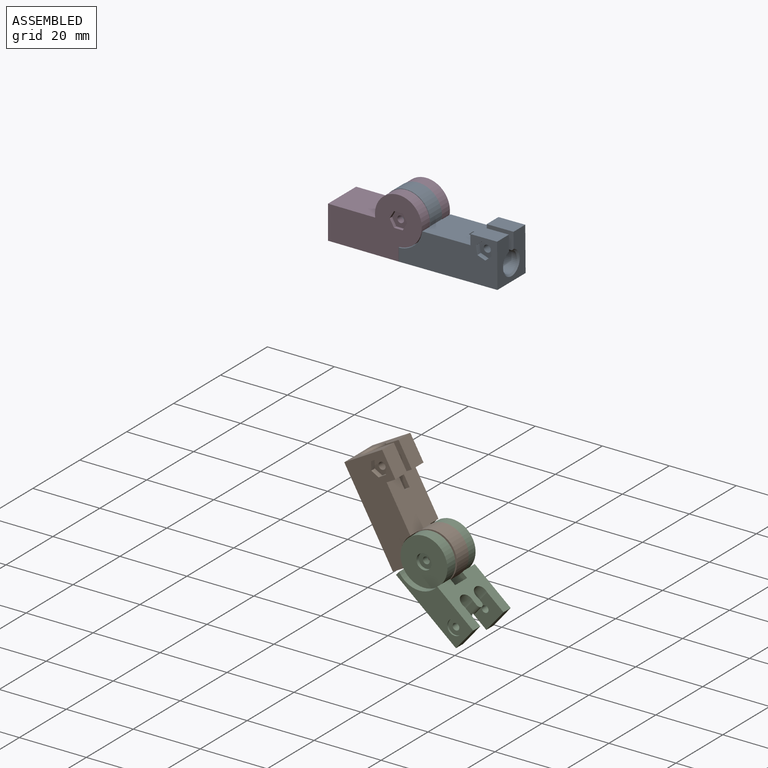
[diagram: assembled view]
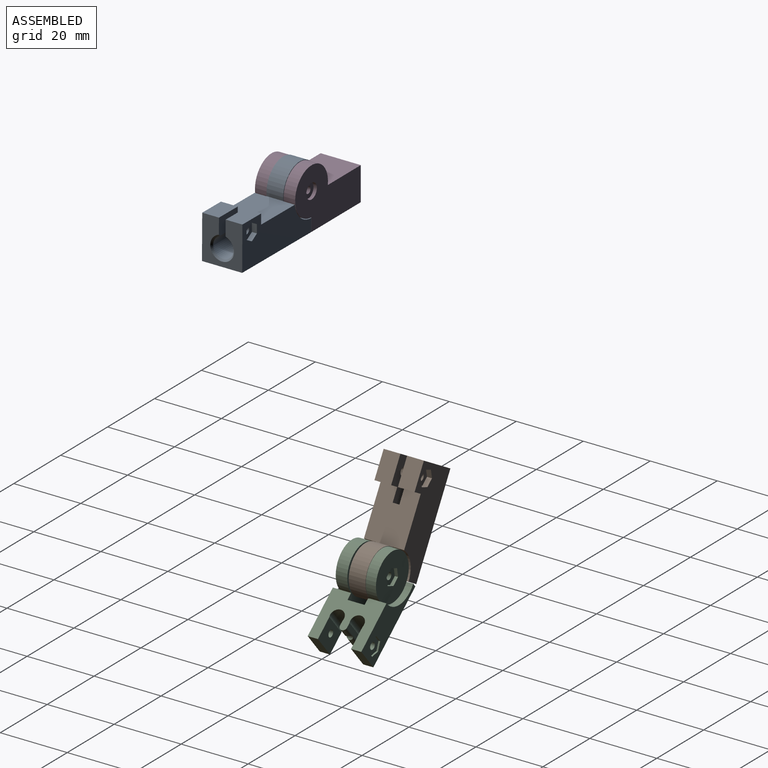
[diagram: assembled view, second angle]
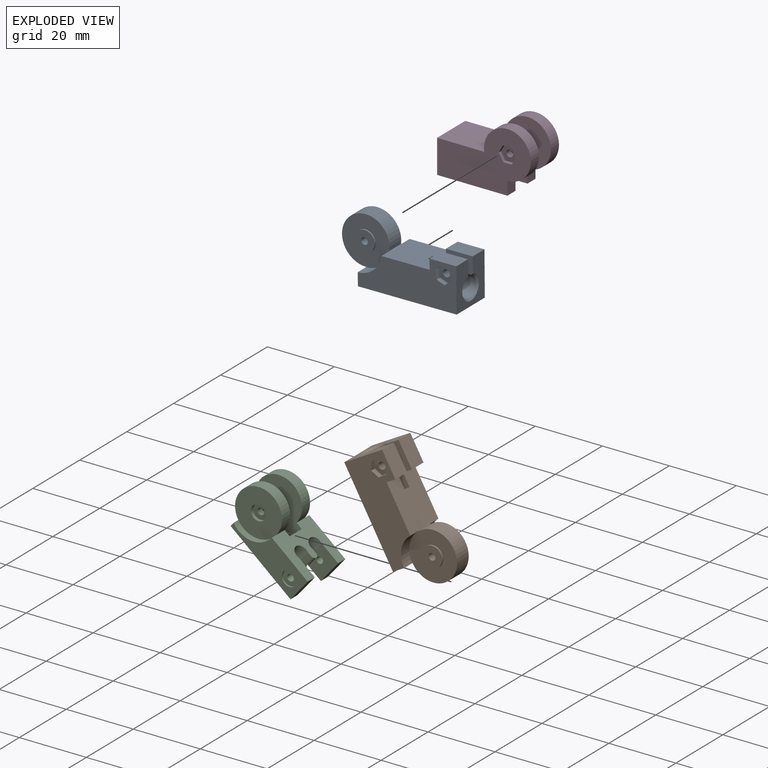
[diagram: exploded view]
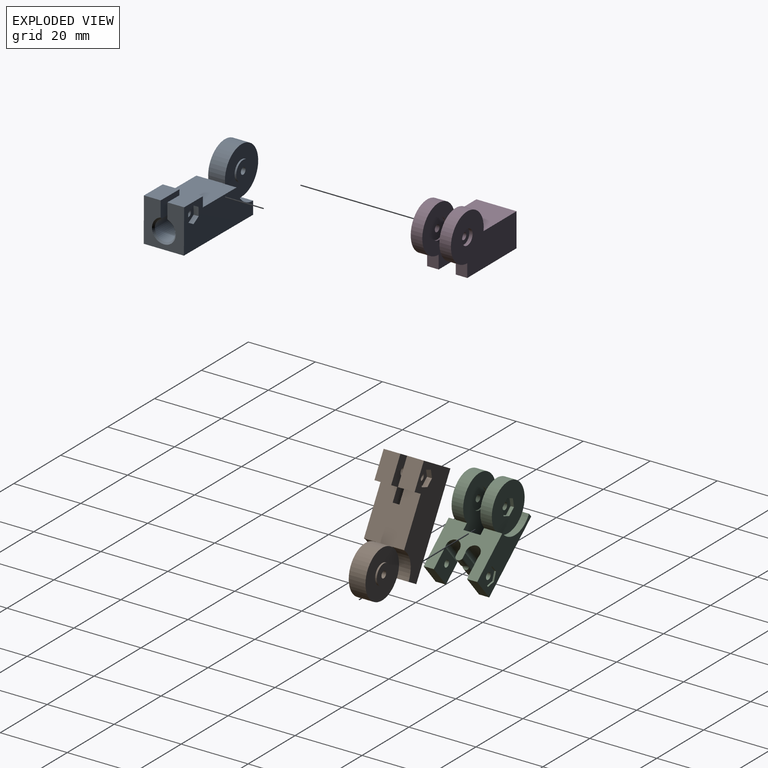
[diagram: exploded view, second angle]
ASSEMBLY  parts=4 mates=2
PART A: 44 faces, bbox 36.6x12x18.1 mm
  f0: plane 8x5mm, normal (0,0,1), area 40mm2, adj f4,f8,f15,f41
  f1: cylinder r=1.05mm len=3.5mm, axis (0,-1,0), area 23.1mm2, adj f39,f40
  f2: plane 14.47x12mm, normal (0,0,1), area 164.9mm2, adj f3,f7,f8,f9,f14,f15,f17,f18
  f3: plane 5x3mm, normal (1,0,0), area 15mm2, adj f2,f7,f16,f40
  f4: plane 13x12mm, normal (-1,0,0), area 107.4mm2, adj f0,f7,f8,f10,f16,f40,f41,f43
  f5: cylinder r=3.05mm len=19.5mm, axis (-1,0,0), area 350.3mm2, adj f25,f40,f41,f42,f43
  f6: cylinder r=1.05mm len=3.5mm, axis (0,-1,0), area 23.1mm2, adj f32,f41
  f7: plane 29.5x13mm, normal (0,1,0), area 268.7mm2, adj f2,f3,f4,f9,f10,f11,f12,f13
  f8: plane 29.5x13mm, normal (0,-1,0), area 268.7mm2, adj f0,f2,f4,f10,f11,f12,f13,f14
  f9: cylinder r=7.2mm len=7.13mm, axis (0,1,0), area 36.1mm2, adj f2,f7,f13,f18
  f10: plane 29.5x12mm, normal (0,0,-1), area 354mm2, adj f4,f7,f8,f11
  f11: plane 12x3mm, normal (1,0,0), area 36mm2, adj f7,f8,f10,f12
  f12: plane 12x0.7mm, normal (1,0,-0.01), area 8.4mm2, adj f7,f8,f11,f13
  f13: plane 12x0.2mm, normal (1,0,0), area 1.7mm2, adj f7,f8,f9,f12,f14,f17,f18,f19
  f14: cylinder r=7.2mm len=7.13mm, axis (0,1,0), area 36.1mm2, adj f2,f8,f13,f17
  f15: plane 5x3mm, normal (1,0,0), area 15mm2, adj f0,f2,f8,f41
  f16: plane 8x5mm, normal (0,0,1), area 40mm2, adj f3,f4,f7,f40
  f17: plane 14.3x14.23mm, normal (0,-1,0), area 131.1mm2, adj f2,f13,f14,f19,f23
  f18: plane 14.3x14.23mm, normal (0,1,0), area 131.1mm2, adj f2,f9,f13,f19,f22
  f19: cylinder r=7.1mm len=14.2mm, axis (0,1,0), area 172.3mm2, adj f2,f13,f17,f18
  f20: cylinder r=1mm len=6mm, axis (0,1,0), area 37.7mm2, adj f21,f24
  f21: plane 6x6mm, normal (0,1,0), area 25.1mm2, adj f20,f22
  f22: cylinder r=3mm len=6mm, axis (0,1,0), area 9.4mm2, adj f18,f21
  f23: cylinder r=3mm len=6mm, axis (0,1,0), area 9.4mm2, adj f17,f24
  f24: plane 6x6mm, normal (0,-1,0), area 25.1mm2, adj f20,f23
  f25: plane 6.1x6.1mm, normal (-1,0,0), area 29.2mm2, adj f5
  f26: plane 2.23x1.5mm, normal (-0.48,0,-0.88), area 3.8mm2, adj f8,f27,f31,f32
  f27: plane 2.17x1.5mm, normal (0.52,0,-0.85), area 3.8mm2, adj f8,f26,f28,f32
  f28: plane 2.54x1.5mm, normal (1,0,0.03), area 3.8mm2, adj f8,f27,f29,f32
  f29: plane 2.23x1.5mm, normal (0.48,0,0.88), area 3.8mm2, adj f8,f28,f30,f32
  f30: plane 2.17x1.5mm, normal (-0.52,0,0.85), area 3.8mm2, adj f8,f29,f31,f32
  f31: plane 2.54x1.5mm, normal (-1,0,-0.03), area 3.8mm2, adj f8,f26,f30,f32
  f32: plane 5.08x4.46mm, normal (0,-1,0), area 13.3mm2, adj f6,f26,f27,f28,f29,f30,f31
  f33: plane 2.38x1.5mm, normal (0.35,0,-0.94), area 3.8mm2, adj f7,f34,f38,f39
  f34: plane 1.95x1.62mm, normal (-0.64,0,-0.77), area 3.8mm2, adj f7,f33,f35,f39
  f35: plane 2.5x1.5mm, normal (-0.99,0,0.17), area 3.8mm2, adj f7,f34,f36,f39
  f36: plane 2.38x1.5mm, normal (-0.35,0,0.94), area 3.8mm2, adj f7,f35,f37,f39
  f37: plane 1.95x1.62mm, normal (0.64,0,0.77), area 3.8mm2, adj f7,f36,f38,f39
  f38: plane 2.5x1.5mm, normal (0.99,0,-0.17), area 3.8mm2, adj f7,f33,f37,f39
  f39: plane 5.01x4.77mm, normal (0,1,0), area 13.3mm2, adj f1,f33,f34,f35,f36,f37,f38
  f40: plane 12.01x5.13mm, normal (0,-1,0), area 45.8mm2, adj f1,f2,f3,f4,f5,f16,f42,f43
  f41: plane 12.01x5.13mm, normal (0,1,0), area 45.8mm2, adj f0,f2,f4,f5,f6,f15,f42,f43
  f42: plane 2.12x2mm, normal (-1,0,0), area 4mm2, adj f2,f5,f40,f41
  f43: cone r=3.05mm half-angle=45deg, axis (-1,0,0), area 13.2mm2, adj f4,f5,f40,f41
PART B: same geometry as A
PART C: 54 faces, bbox 28x16x15 mm
  f0: cylinder r=1mm len=2.55mm, axis (0,-1,0), area 16mm2, adj f37,f51
  f1: plane 23.36x8mm, normal (0,-1,0), area 114.7mm2, adj f4,f5,f9,f10,f17,f43,f44,f45
  f2: cylinder r=1mm len=2.55mm, axis (0,-1,0), area 16mm2, adj f38,f49
  f3: plane 3.02x0.1mm, normal (-1,0,0), area 0.3mm2, adj f9,f42,f52,f53
  f4: plane 8x3.05mm, normal (-1,0,0), area 24.4mm2, adj f1,f5,f9,f38
  f5: plane 16x14mm, normal (0,0,1), area 137mm2, adj f1,f4,f11,f12,f14,f15,f17,f18
  f6: cylinder r=1mm len=2mm, axis (0,-1,0), area 12.6mm2, adj f21,f34
  f7: plane 14x14mm, normal (0,-1,0), area 136.4mm2, adj f11,f17,f26,f27,f28,f29,f30,f31
  f8: cylinder r=1mm len=2mm, axis (0,-1,0), area 12.6mm2, adj f22,f32
  f9: plane 23.36x16mm, normal (0,0,-1), area 239mm2, adj f1,f3,f4,f10,f15,f16,f18,f23
  f10: plane 5.45x1.41mm, normal (1,0,0), area 7.7mm2, adj f1,f9,f11,f17,f24
  f11: cylinder r=7mm len=14mm, axis (0,1,0), area 105.5mm2, adj f5,f7,f10,f24
  f12: cylinder r=7mm len=14mm, axis (0,1,0), area 105.5mm2, adj f5,f16,f19,f25
  f13: cylinder r=3.05mm len=6.1mm, axis (0,-1,0), area 8.6mm2, adj f22,f24
  f14: cylinder r=7mm len=9.36mm, axis (0,1,0), area 26.8mm2, adj f5,f16,f18,f19
  f15: plane 8x3.05mm, normal (-1,0,0), area 24.4mm2, adj f5,f9,f18,f37
  f16: plane 5.45x1.41mm, normal (1,0,0), area 7.7mm2, adj f9,f12,f14,f18,f25
  f17: cylinder r=7mm len=9.36mm, axis (0,1,0), area 26.8mm2, adj f1,f5,f7,f10
  f18: plane 23.36x8mm, normal (0,1,0), area 116.3mm2, adj f5,f9,f14,f15,f16,f50
  f19: plane 14x14mm, normal (0,1,0), area 138mm2, adj f12,f14,f33
  f20: cylinder r=3.05mm len=6.1mm, axis (0,-1,0), area 8.6mm2, adj f21,f25
  f21: plane 6.1x6.1mm, normal (0,-1,0), area 26.1mm2, adj f6,f20
  f22: plane 6.1x6.1mm, normal (0,1,0), area 26.1mm2, adj f8,f13
  f23: plane 8x5.1mm, normal (1,0,0), area 40.8mm2, adj f5,f9,f24,f25
  f24: plane 16x15mm, normal (0,1,0), area 160.9mm2, adj f5,f9,f10,f11,f13,f23
  f25: plane 16x15mm, normal (0,-1,0), area 160.9mm2, adj f5,f9,f12,f16,f20,f23
  f26: plane 2.6x1mm, normal (0,0,-1), area 2.6mm2, adj f7,f27,f31,f32
  f27: plane 2.25x1.3mm, normal (0.87,0,-0.5), area 2.6mm2, adj f7,f26,f28,f32
  f28: plane 2.25x1.3mm, normal (0.87,0,0.5), area 2.6mm2, adj f7,f27,f29,f32
  f29: plane 2.6x1mm, normal (0,0,1), area 2.6mm2, adj f7,f28,f30,f32
  f30: plane 2.25x1.3mm, normal (-0.87,0,0.5), area 2.6mm2, adj f7,f29,f31,f32
  f31: plane 2.25x1.3mm, normal (-0.87,0,-0.5), area 2.6mm2, adj f7,f26,f30,f32
  f32: plane 5.2x4.5mm, normal (0,-1,0), area 14.4mm2, adj f8,f26,f27,f28,f29,f30,f31
  f33: cylinder r=2.25mm len=4.5mm, axis (0,1,0), area 14.1mm2, adj f19,f34
  f34: plane 4.5x4.5mm, normal (0,1,0), area 12.8mm2, adj f6,f33
  f35: plane 8x1.37mm, normal (0,1,0), area 10.9mm2, adj f5,f9,f36,f53
  f36: cylinder r=2.05mm len=8mm, axis (0,0,1), area 61.8mm2, adj f5,f9,f35,f37
  f37: plane 8x6.37mm, normal (0,-1,0), area 47.8mm2, adj f0,f5,f9,f15,f36
  f38: plane 8x6.37mm, normal (0,1,0), area 47.8mm2, adj f2,f4,f5,f9,f39
  f39: cylinder r=2.05mm len=8mm, axis (0,0,1), area 61.8mm2, adj f5,f9,f38,f40
  f40: plane 8x1.37mm, normal (0,-1,0), area 10.9mm2, adj f5,f9,f39,f52
  f41: plane 3.02x0.1mm, normal (-1,0,0), area 0.3mm2, adj f5,f42,f52,f53
  f42: cylinder r=1mm len=2.06mm, axis (0,-1,0), area 4.7mm2, adj f3,f41,f52,f53
  f43: plane 2.6x0.5mm, normal (-1,0,0), area 1.3mm2, adj f1,f44,f48,f49
  f44: plane 2.25x1.3mm, normal (-0.5,0,-0.87), area 1.3mm2, adj f1,f43,f45,f49
  f45: plane 2.25x1.3mm, normal (0.5,0,-0.87), area 1.3mm2, adj f1,f44,f46,f49
  f46: plane 2.6x0.5mm, normal (1,0,0), area 1.3mm2, adj f1,f45,f47,f49
  f47: plane 2.25x1.3mm, normal (0.5,0,0.87), area 1.3mm2, adj f1,f46,f48,f49
  f48: plane 2.25x1.3mm, normal (-0.5,0,0.87), area 1.3mm2, adj f1,f43,f47,f49
  f49: plane 5.2x4.5mm, normal (0,-1,0), area 14.4mm2, adj f2,f43,f44,f45,f46,f47,f48
  f50: cylinder r=2.25mm len=4.5mm, axis (0,1,0), area 7.1mm2, adj f18,f51
  f51: plane 4.5x4.5mm, normal (0,1,0), area 12.8mm2, adj f0,f50
  f52: cylinder r=1mm len=8mm, axis (0,0,-1), area 10.3mm2, adj f3,f5,f9,f40,f41,f42
  f53: cylinder r=1mm len=8mm, axis (0,0,1), area 10.3mm2, adj f3,f5,f9,f35,f41,f42
PART D: 30 faces, bbox 28x12x18 mm
  f0: cylinder r=1mm len=2mm, axis (0,-1,0), area 12.6mm2, adj f13,f26
  f1: plane 28x18mm, normal (0,-1,0), area 314.9mm2, adj f3,f4,f5,f8,f9,f18,f19,f20
  f2: cylinder r=1mm len=2mm, axis (0,-1,0), area 12.6mm2, adj f14,f24
  f3: plane 14.07x12mm, normal (0,0,1), area 164.7mm2, adj f1,f5,f6,f8,f11,f15,f16,f17
  f4: plane 4x3.45mm, normal (1,0,0), area 13.8mm2, adj f1,f5,f9,f16
  f5: cylinder r=7mm len=14mm, axis (0,1,0), area 117.3mm2, adj f1,f3,f4,f16
  f6: cylinder r=7mm len=14mm, axis (0,1,0), area 117.3mm2, adj f3,f10,f11,f17
  f7: cylinder r=3.05mm len=6.1mm, axis (0,-1,0), area 8.6mm2, adj f14,f16
  f8: plane 12x10mm, normal (-1,0,0), area 69.7mm2, adj f1,f3,f9,f11,f29
  f9: plane 21x12mm, normal (0,0,-1), area 212.5mm2, adj f1,f4,f8,f10,f11,f15,f16,f17
  f10: plane 4x3.45mm, normal (1,0,0), area 13.8mm2, adj f6,f9,f11,f17
  f11: plane 28x18mm, normal (0,1,0), area 316.5mm2, adj f3,f6,f8,f9,f10,f25
  f12: cylinder r=3.05mm len=6.1mm, axis (0,-1,0), area 8.6mm2, adj f13,f17
  f13: plane 6.1x6.1mm, normal (0,-1,0), area 26.1mm2, adj f0,f12
  f14: plane 6.1x6.1mm, normal (0,1,0), area 26.1mm2, adj f2,f7
  f15: plane 10x5.1mm, normal (1,0,0), area 51mm2, adj f3,f9,f16,f17
  f16: plane 18x14.75mm, normal (0,1,0), area 170.7mm2, adj f3,f4,f5,f7,f9,f15
  f17: plane 18x14.75mm, normal (0,-1,0), area 170.7mm2, adj f3,f6,f9,f10,f12,f15
  f18: plane 2.6x1mm, normal (0,0,-1), area 2.6mm2, adj f1,f19,f23,f24
  f19: plane 2.25x1.3mm, normal (0.87,0,-0.5), area 2.6mm2, adj f1,f18,f20,f24
  f20: plane 2.25x1.3mm, normal (0.87,0,0.5), area 2.6mm2, adj f1,f19,f21,f24
  f21: plane 2.6x1mm, normal (0,0,1), area 2.6mm2, adj f1,f20,f22,f24
  f22: plane 2.25x1.3mm, normal (-0.87,0,0.5), area 2.6mm2, adj f1,f21,f23,f24
  f23: plane 2.25x1.3mm, normal (-0.87,0,-0.5), area 2.6mm2, adj f1,f18,f22,f24
  f24: plane 5.2x4.5mm, normal (0,-1,0), area 14.4mm2, adj f2,f18,f19,f20,f21,f22,f23
  f25: cylinder r=2.25mm len=4.5mm, axis (0,1,0), area 14.1mm2, adj f11,f26
  f26: plane 4.5x4.5mm, normal (0,1,0), area 12.8mm2, adj f0,f25
  f27: cylinder r=3mm len=11mm, axis (-1,0,0), area 207.3mm2, adj f28,f29
  f28: plane 6x6mm, normal (-1,0,0), area 28.3mm2, adj f27
  f29: cone r=3mm half-angle=45deg, axis (-1,0,0), area 31.1mm2, adj f8,f27
PLACE A rot(axis=(0,0,-1),180deg) t=(22.8,-12.03,-20.75)mm
PLACE B rot(axis=(0,1,0),60.5deg) t=(2.64,8.2,-113.93)mm
PLACE C rot(axis=(-0.34,0,-0.94),180deg) t=(13.89,7.75,-126.9)mm fixed
PLACE D t=(7.02,-12.03,-21.3)mm fixed
MATE revolute A.f9 <-> D.f0  axis (0,-1,0) through (15.77,-15.03,-16.8)mm
MATE revolute B.f9 <-> C.f6  axis (0,-1,0) through (9.57,5.2,-118.05)mm
